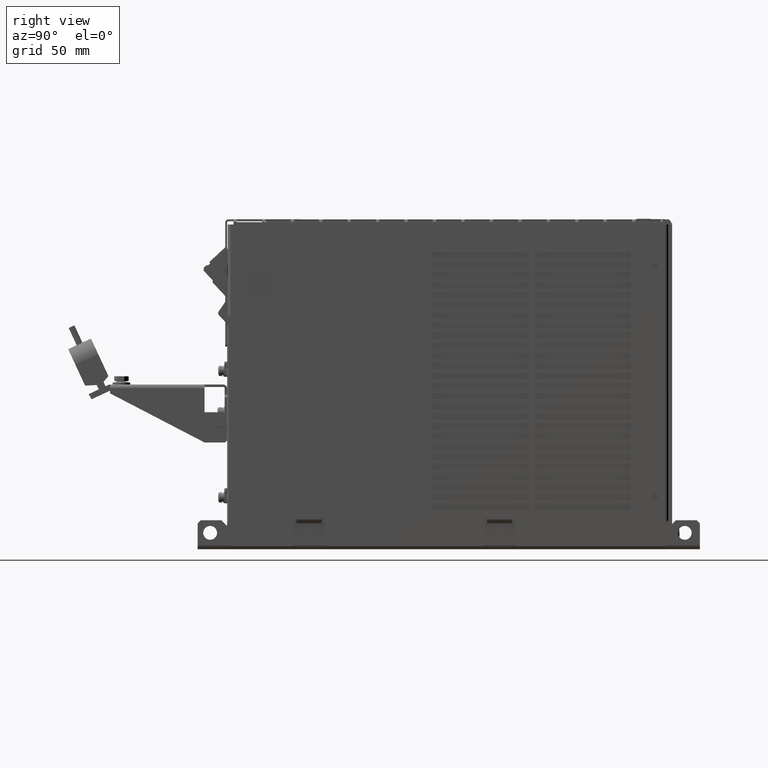
[diagram: clean part render]
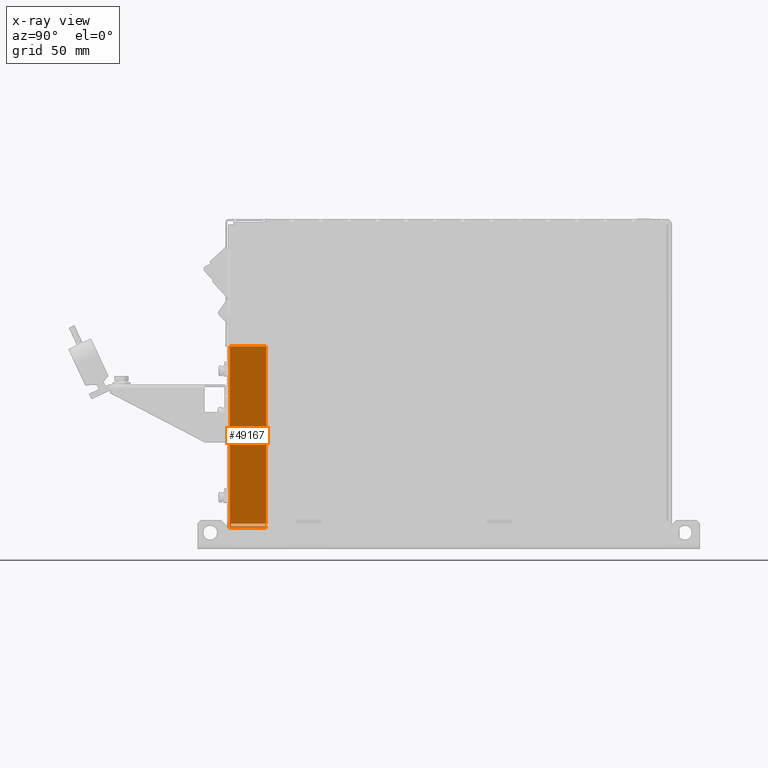
[diagram: x-ray — body ghosted, one internal face saturated and labeled with its STEP entity id]
A machine part, right view, then the same camera in x-ray: the body is ghosted and one INTERNAL B-rep face — a face not visible from any outside direction — is saturated and labeled: STEP entity #49167.
In plain terms, the highlighted planar face has unit normal (1, 0, 0).
Its self-contained STEP definition (entity closure, byte-faithful):
#2068=DIRECTION('',(0.E0,0.E0,1.E0));
#2069=VECTOR('',#2068,1.408660254038E-1);
#2070=CARTESIAN_POINT('',(6.1E-2,-1.45E-1,1.763397459622E-2));
#2071=LINE('',#2070,#2069);
#2076=DIRECTION('',(0.E0,0.E0,1.E0));
#2077=VECTOR('',#2076,1.041960108450E-3);
#2078=CARTESIAN_POINT('',(6.1E-2,-1.45E-1,1.45E-2));
#2079=LINE('',#2078,#2077);
#4369=DIRECTION('',(0.E0,-1.E0,0.E0));
#4370=VECTOR('',#4369,2.9E-2);
#4371=CARTESIAN_POINT('',(6.1E-2,-1.45E-1,1.45E-2));
#4372=LINE('',#4371,#4370);
#4413=DIRECTION('',(0.E0,0.E0,1.E0));
#4414=VECTOR('',#4413,2.092014487765E-3);
#4415=CARTESIAN_POINT('',(6.1E-2,-1.73E-1,1.554196010845E-2));
#4416=LINE('',#4415,#4414);
#4435=DIRECTION('',(0.E0,1.E0,0.E0));
#4436=VECTOR('',#4435,2.8E-2);
#4437=CARTESIAN_POINT('',(6.1E-2,-1.73E-1,1.763397459622E-2));
#4438=LINE('',#4437,#4436);
#4481=DIRECTION('',(0.E0,1.E0,0.E0));
#4482=VECTOR('',#4481,2.8E-2);
#4483=CARTESIAN_POINT('',(6.1E-2,-1.73E-1,1.554196010845E-2));
#4484=LINE('',#4483,#4482);
#4516=DIRECTION('',(0.E0,0.E0,1.E0));
#4517=VECTOR('',#4516,1.395E-1);
#4518=CARTESIAN_POINT('',(6.1E-2,-1.738660254038E-1,1.9E-2));
#4519=LINE('',#4518,#4517);
#4555=DIRECTION('',(0.E0,-1.E0,2.589630459771E-14));
#4556=VECTOR('',#4555,1.339745962156E-4);
#4557=CARTESIAN_POINT('',(6.1E-2,-1.738660254038E-1,1.9E-2));
#4558=LINE('',#4557,#4556);
#4563=DIRECTION('',(0.E0,0.E0,1.E0));
#4564=VECTOR('',#4563,4.5E-3);
#4565=CARTESIAN_POINT('',(6.1E-2,-1.74E-1,1.45E-2));
#4566=LINE('',#4565,#4564);
#14746=DIRECTION('',(0.E0,-1.E0,0.E0));
#14747=VECTOR('',#14746,2.886602540378E-2);
#14748=CARTESIAN_POINT('',(6.1E-2,-1.45E-1,1.585E-1));
#14749=LINE('',#14748,#14747);
#36588=CARTESIAN_POINT('',(6.1E-2,-1.73E-1,1.554196010845E-2));
#36589=CARTESIAN_POINT('',(6.1E-2,-1.73E-1,1.763397459622E-2));
#36590=VERTEX_POINT('',#36588);
#36591=VERTEX_POINT('',#36589);
#36592=CARTESIAN_POINT('',(6.1E-2,-1.45E-1,1.554196010845E-2));
#36593=VERTEX_POINT('',#36592);
#36600=CARTESIAN_POINT('',(6.1E-2,-1.738660254038E-1,1.9E-2));
#36601=CARTESIAN_POINT('',(6.1E-2,-1.738660254038E-1,1.585E-1));
#36602=VERTEX_POINT('',#36600);
#36603=VERTEX_POINT('',#36601);
#36604=CARTESIAN_POINT('',(6.1E-2,-1.45E-1,1.763397459622E-2));
#36605=VERTEX_POINT('',#36604);
#36606=CARTESIAN_POINT('',(6.1E-2,-1.74E-1,1.9E-2));
#36607=VERTEX_POINT('',#36606);
#36610=CARTESIAN_POINT('',(6.1E-2,-1.74E-1,1.45E-2));
#36611=VERTEX_POINT('',#36610);
#36612=CARTESIAN_POINT('',(6.1E-2,-1.45E-1,1.45E-2));
#36613=VERTEX_POINT('',#36612);
#36616=CARTESIAN_POINT('',(6.1E-2,-1.45E-1,1.585E-1));
#36617=VERTEX_POINT('',#36616);
#49143=CARTESIAN_POINT('',(6.1E-2,-1.45E-1,0.E0));
#49144=DIRECTION('',(1.E0,0.E0,0.E0));
#49145=DIRECTION('',(0.E0,0.E0,1.E0));
#49146=AXIS2_PLACEMENT_3D('',#49143,#49144,#49145);
#49147=PLANE('',#49146);
#49149=ORIENTED_EDGE('',*,*,#49148,.F.);
#49151=ORIENTED_EDGE('',*,*,#49150,.T.);
#49152=ORIENTED_EDGE('',*,*,#41163,.F.);
#49153=ORIENTED_EDGE('',*,*,#49119,.T.);
#49155=ORIENTED_EDGE('',*,*,#49154,.T.);
#49157=ORIENTED_EDGE('',*,*,#49156,.F.);
#49159=ORIENTED_EDGE('',*,*,#49158,.T.);
#49161=ORIENTED_EDGE('',*,*,#49160,.F.);
#49162=ORIENTED_EDGE('',*,*,#41144,.F.);
#49164=ORIENTED_EDGE('',*,*,#49163,.F.);
#49165=EDGE_LOOP('',(#49149,#49151,#49152,#49153,#49155,#49157,#49159,#49161,
#49162,#49164));
#49166=FACE_OUTER_BOUND('',#49165,.F.);
#49167=ADVANCED_FACE('',(#49166),#49147,.T.);
#41144=EDGE_CURVE('',#36605,#36617,#2071,.T.);
#41163=EDGE_CURVE('',#36613,#36593,#2079,.T.);
#49119=EDGE_CURVE('',#36613,#36611,#4372,.T.);
#49148=EDGE_CURVE('',#36590,#36591,#4416,.T.);
#49150=EDGE_CURVE('',#36590,#36593,#4484,.T.);
#49154=EDGE_CURVE('',#36611,#36607,#4566,.T.);
#49156=EDGE_CURVE('',#36602,#36607,#4558,.T.);
#49158=EDGE_CURVE('',#36602,#36603,#4519,.T.);
#49160=EDGE_CURVE('',#36617,#36603,#14749,.T.);
#49163=EDGE_CURVE('',#36591,#36605,#4438,.T.);